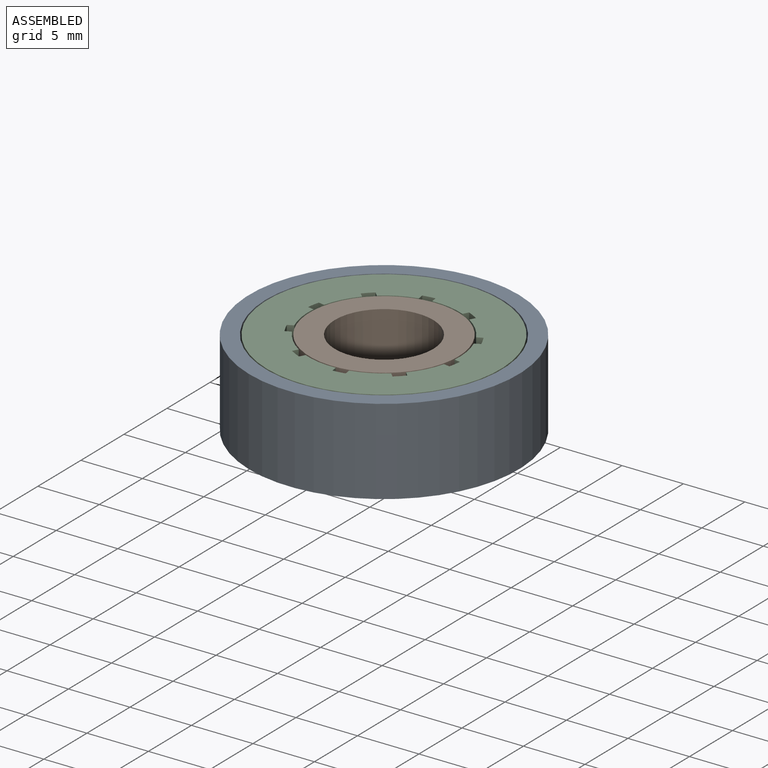
[diagram: assembled view]
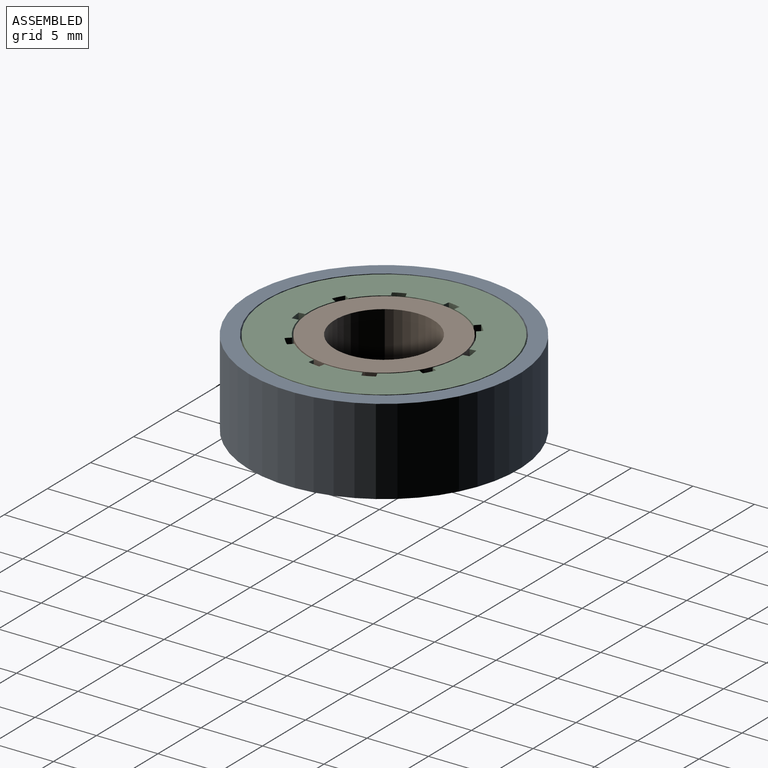
[diagram: assembled view, second angle]
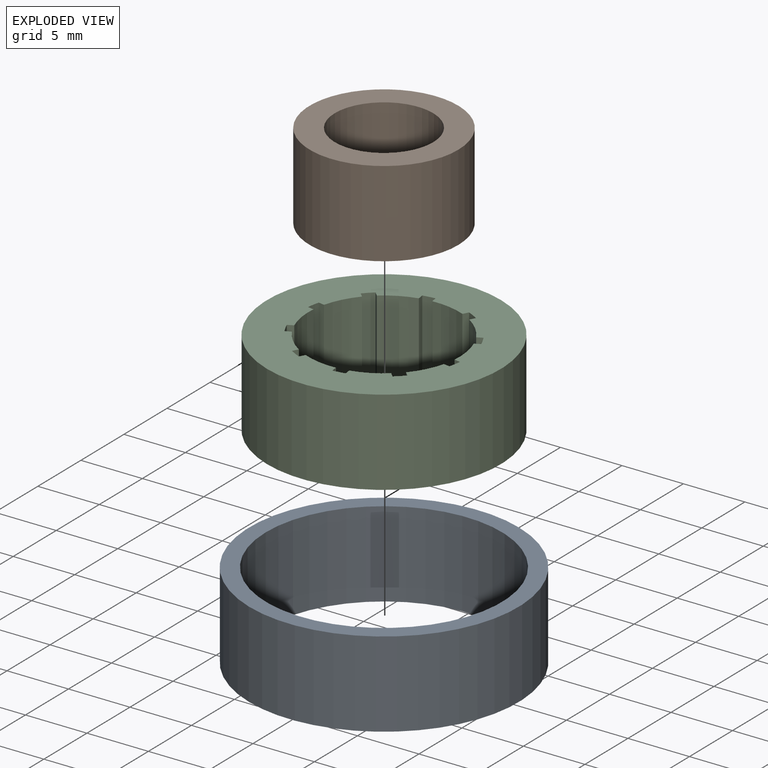
[diagram: exploded view]
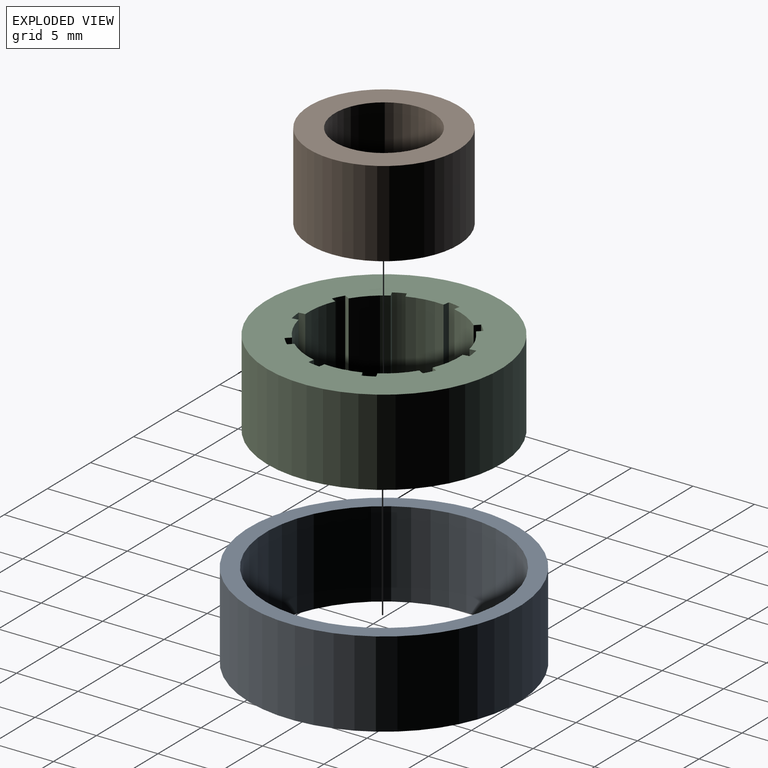
[diagram: exploded view, second angle]
ASSEMBLY  parts=3 mates=2
PART A: 4 faces, bbox 21.9x21.9x7 mm
  f0: cylinder r=9.6mm len=19.2mm, axis (0,0,-1), area 422.2mm2, adj f2,f3
  f1: cylinder r=10.95mm len=21.9mm, axis (0,0,-1), area 481.6mm2, adj f2,f3
  f2: plane 21.9x21.9mm, normal (0,0,1), area 87.2mm2, adj f0,f1
  f3: plane 21.9x21.9mm, normal (0,0,-1), area 87.2mm2, adj f0,f1
PART B: 4 faces, bbox 12.1x12.1x7 mm
  f0: cylinder r=4mm len=8mm, axis (0,0,-1), area 175.9mm2, adj f2,f3
  f1: cylinder r=6.05mm len=12.1mm, axis (0,0,-1), area 266.1mm2, adj f2,f3
  f2: plane 12.1x12.1mm, normal (0,0,1), area 64.7mm2, adj f0,f1
  f3: plane 12.1x12.1mm, normal (0,0,-1), area 64.7mm2, adj f0,f1
PART C: 43 faces, bbox 19x19x7 mm
  f0: cylinder r=6.15mm len=7mm, axis (0,0,-1), area 20mm2, adj f10,f11,f13,f42
  f1: cylinder r=6.15mm len=7mm, axis (0,0,-1), area 20mm2, adj f10,f11,f39,f40
  f2: cylinder r=6.15mm len=7mm, axis (0,0,-1), area 20mm2, adj f10,f11,f36,f37
  f3: cylinder r=6.15mm len=7mm, axis (0,0,-1), area 20mm2, adj f10,f11,f33,f34
  f4: cylinder r=6.15mm len=7mm, axis (0,0,-1), area 20mm2, adj f10,f11,f30,f31
  f5: cylinder r=6.15mm len=7mm, axis (0,0,-1), area 20mm2, adj f10,f11,f27,f28
  f6: cylinder r=6.15mm len=7mm, axis (0,0,-1), area 20mm2, adj f10,f11,f24,f25
  f7: cylinder r=6.15mm len=7mm, axis (0,0,-1), area 20mm2, adj f10,f11,f21,f22
  f8: cylinder r=6.15mm len=7mm, axis (0,0,-1), area 20mm2, adj f10,f11,f18,f19
  f9: cylinder r=6.15mm len=7mm, axis (0,0,-1), area 20mm2, adj f10,f11,f15,f16
  f10: plane 19x19mm, normal (0,0,1), area 159.7mm2, adj f0,f1,f2,f3,f4,f5,f6,f7
  f11: plane 19x19mm, normal (0,0,-1), area 159.7mm2, adj f0,f1,f2,f3,f4,f5,f6,f7
  f12: cylinder r=9.5mm len=19mm, axis (0,0,-1), area 417.8mm2, adj f10,f11
  f13: plane 7x0.41mm, normal (-0.81,-0.59,0), area 3.5mm2, adj f0,f10,f11,f14
  f14: cylinder r=6.65mm len=7mm, axis (0,0,1), area 7mm2, adj f10,f11,f13,f15
  f15: plane 7x0.41mm, normal (0.81,0.59,0), area 3.5mm2, adj f9,f10,f11,f14
  f16: plane 7x0.48mm, normal (-0.31,-0.95,0), area 3.5mm2, adj f9,f10,f11,f17
  f17: cylinder r=6.65mm len=7mm, axis (0,0,1), area 7mm2, adj f10,f11,f16,f18
  f18: plane 7x0.48mm, normal (0.31,0.95,0), area 3.5mm2, adj f8,f10,f11,f17
  f19: plane 7x0.48mm, normal (0.31,-0.95,0), area 3.5mm2, adj f8,f10,f11,f20
  f20: cylinder r=6.65mm len=7mm, axis (0,0,1), area 7mm2, adj f10,f11,f19,f21
  f21: plane 7x0.48mm, normal (-0.31,0.95,0), area 3.5mm2, adj f7,f10,f11,f20
  f22: plane 7x0.41mm, normal (0.81,-0.59,0), area 3.5mm2, adj f7,f10,f11,f23
  f23: cylinder r=6.65mm len=7mm, axis (0,0,1), area 7mm2, adj f10,f11,f22,f24
  f24: plane 7x0.41mm, normal (-0.81,0.59,0), area 3.5mm2, adj f6,f10,f11,f23
  f25: plane 7x0.5mm, normal (1,0,0), area 3.5mm2, adj f6,f10,f11,f26
  f26: cylinder r=6.65mm len=7mm, axis (0,0,1), area 7mm2, adj f10,f11,f25,f27
  f27: plane 7x0.5mm, normal (-1,0,0), area 3.5mm2, adj f5,f10,f11,f26
  f28: plane 7x0.41mm, normal (0.81,0.59,0), area 3.5mm2, adj f5,f10,f11,f29
  f29: cylinder r=6.65mm len=7mm, axis (0,0,1), area 7mm2, adj f10,f11,f28,f30
  f30: plane 7x0.41mm, normal (-0.81,-0.59,0), area 3.5mm2, adj f4,f10,f11,f29
  f31: plane 7x0.48mm, normal (0.31,0.95,0), area 3.5mm2, adj f4,f10,f11,f32
  f32: cylinder r=6.65mm len=7mm, axis (0,0,1), area 7mm2, adj f10,f11,f31,f33
  f33: plane 7x0.48mm, normal (-0.31,-0.95,0), area 3.5mm2, adj f3,f10,f11,f32
  f34: plane 7x0.48mm, normal (-0.31,0.95,0), area 3.5mm2, adj f3,f10,f11,f35
  f35: cylinder r=6.65mm len=7mm, axis (0,0,1), area 7mm2, adj f10,f11,f34,f36
  f36: plane 7x0.48mm, normal (0.31,-0.95,0), area 3.5mm2, adj f2,f10,f11,f35
  f37: plane 7x0.41mm, normal (-0.81,0.59,0), area 3.5mm2, adj f2,f10,f11,f38
  f38: cylinder r=6.65mm len=7mm, axis (0,0,1), area 7mm2, adj f10,f11,f37,f39
  f39: plane 7x0.41mm, normal (0.81,-0.59,0), area 3.5mm2, adj f1,f10,f11,f38
  f40: plane 7x0.5mm, normal (-1,0,0), area 3.5mm2, adj f1,f10,f11,f41
  f41: cylinder r=6.65mm len=7mm, axis (0,0,1), area 7mm2, adj f10,f11,f40,f42
  f42: plane 7x0.5mm, normal (1,0,0), area 3.5mm2, adj f0,f10,f11,f41
PLACE A rot(axis=(0,0,-1),27.8deg) t=(0.4,-0.34,-0.26)mm
PLACE B t=(0.4,-0.34,-0.26)mm fixed
PLACE C rot(axis=(0,0,-1),27.8deg) t=(0.4,-0.34,-0.26)mm
MATE fastened A.f0 <-> C.f0  axis (0,0,1) through (0.4,-0.34,6.74)mm
MATE revolute B.f0 <-> C.f0  axis (0,0,1) through (0.4,-0.34,6.74)mm
